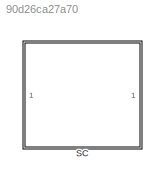
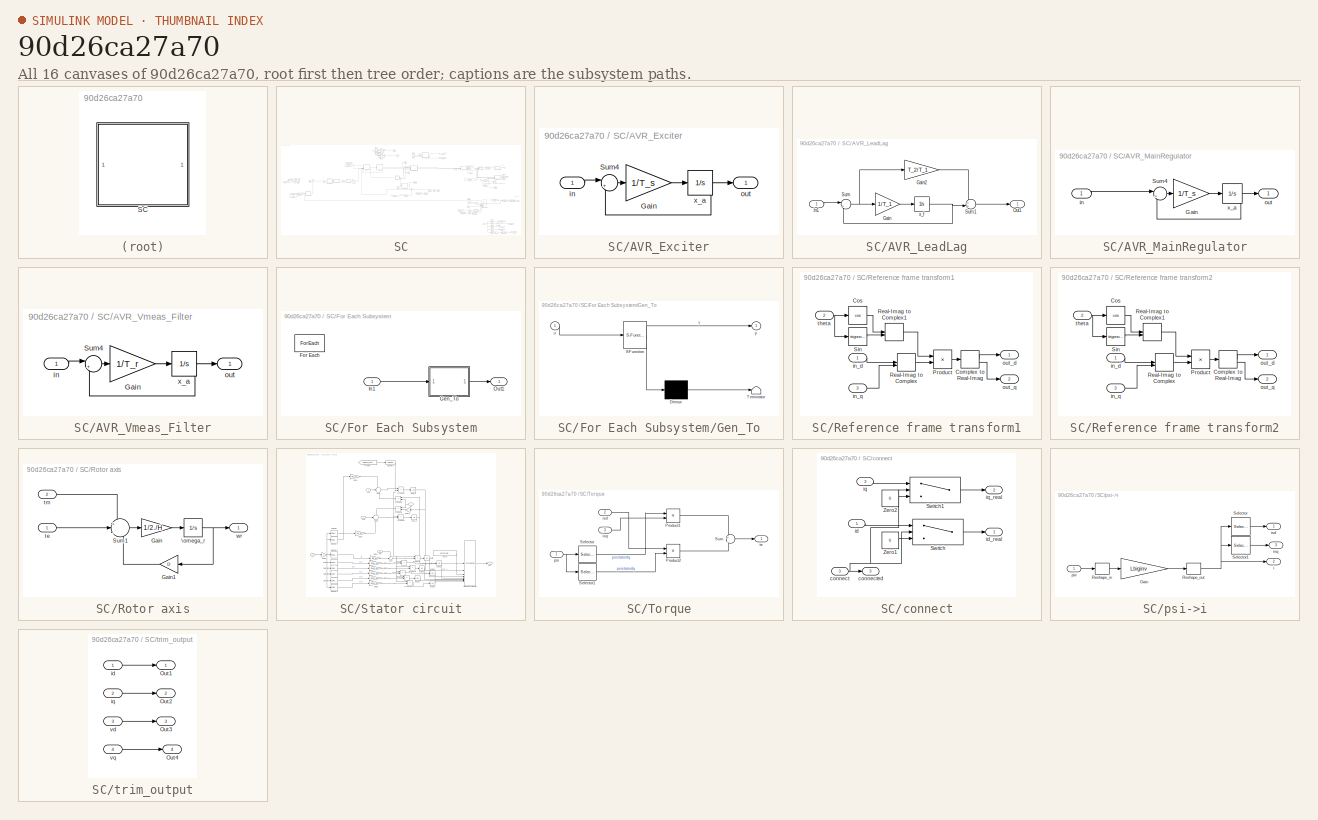
[diagram: thumbnail index - all 16 canvases of the model, root first then tree order]
MODEL slx_90d26ca27a70
KIND model
CONFIG AbsTol = auto
CONFIG EnableMultiTasking = off
CONFIG FixedStep = auto
CONFIG MaxStep = auto
CONFIG MinStep = auto
CONFIG RelTol = 1e-3
CONFIG SampleTimeConstraint = Unconstrained
CONFIG SolverName = VariableStepAuto
CONFIG StartTime = 0.0
CONFIG StopTime = 10.0
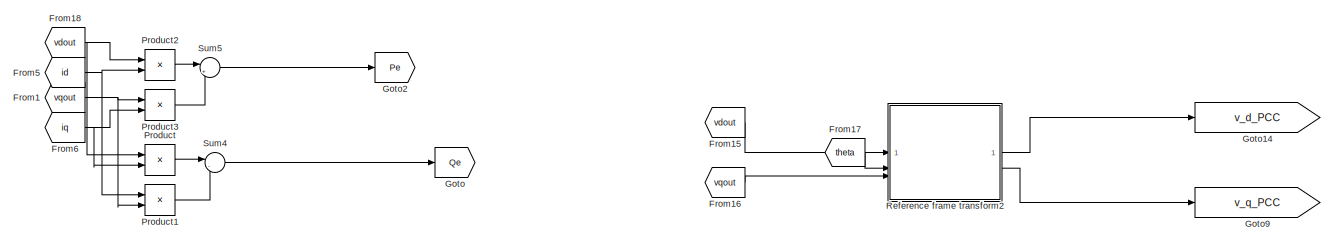
[diagram: SC - part 1/6, top center region]
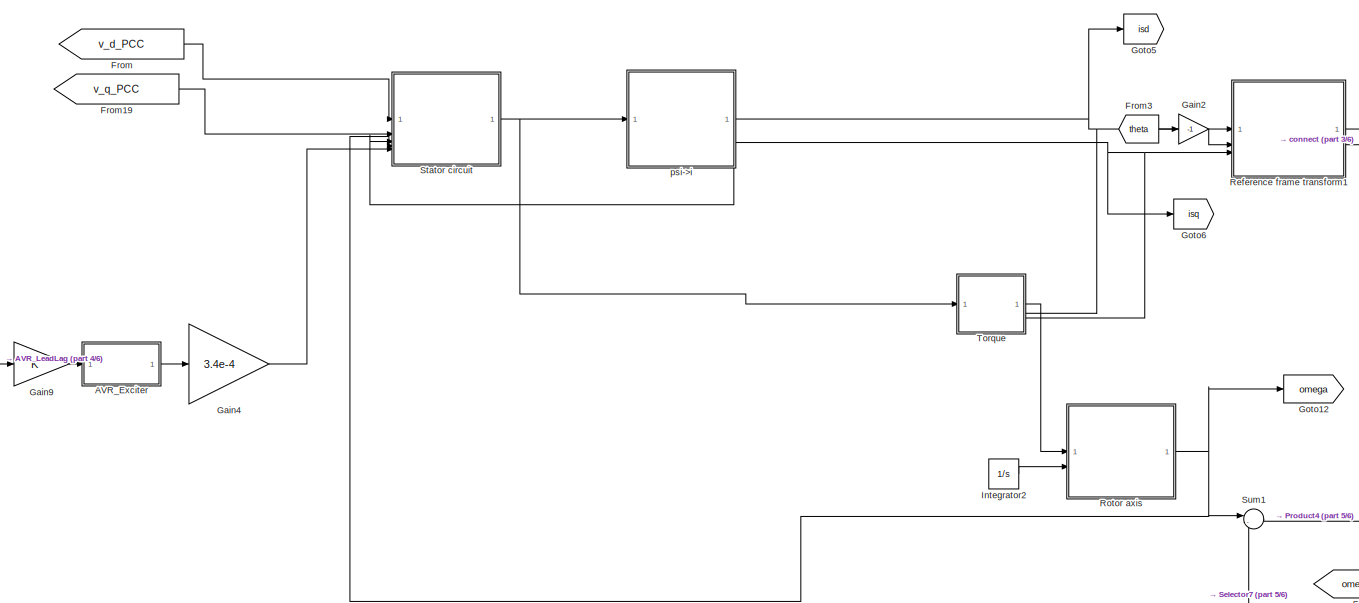
[diagram: SC - part 2/6, central region]
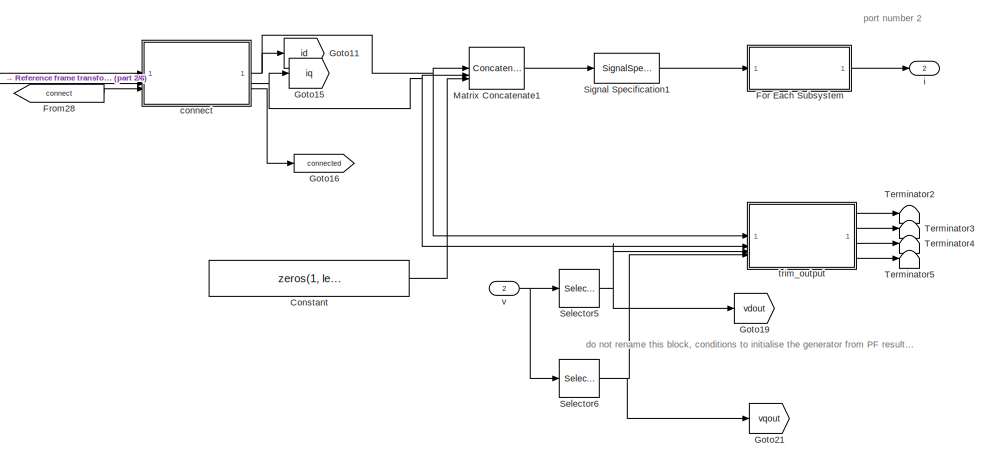
[diagram: SC - part 3/6, middle right region]
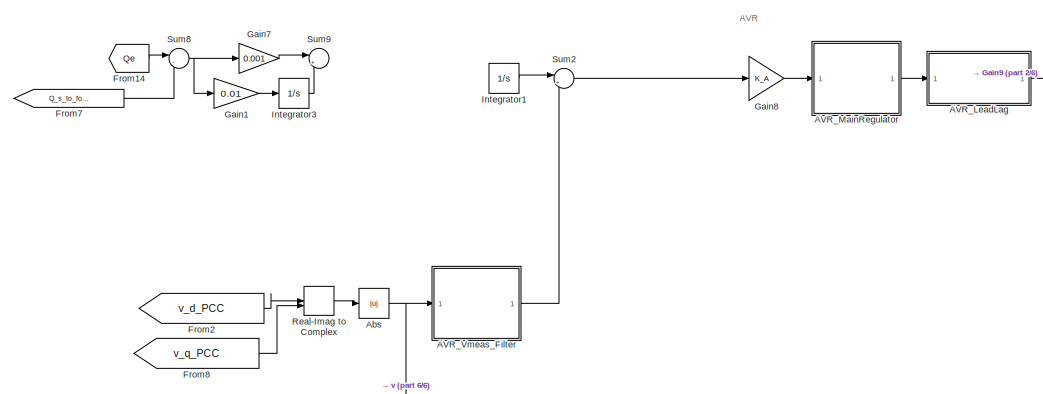
[diagram: SC - part 4/6, middle left region]
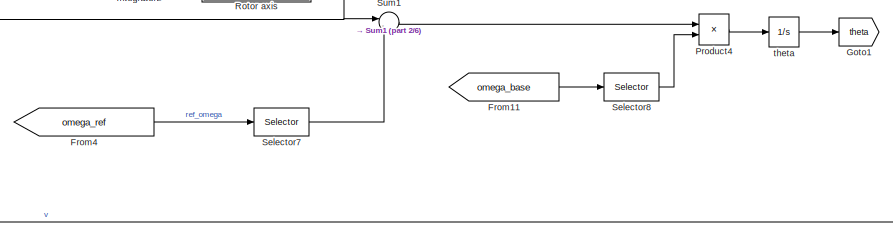
[diagram: SC - part 5/6, central region]
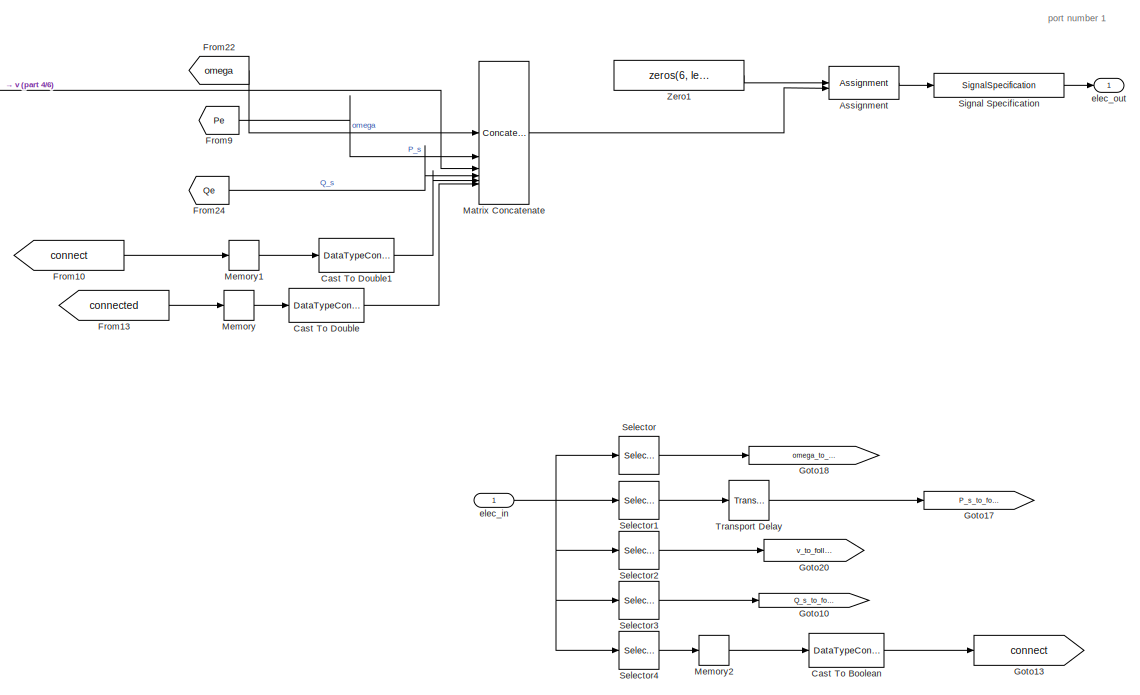
[diagram: SC - part 6/6, bottom right region]
BLOCK [SubSystem] SC
  Commented = on
BLOCK [SubSystem] SC/AVR_Exciter
BLOCK [Gain] SC/AVR_Exciter/Gain
  Gain = 1/T_s
BLOCK [Sum] SC/AVR_Exciter/Sum4
  Inputs = |+-
BLOCK [Inport] SC/AVR_Exciter/in
BLOCK [Outport] SC/AVR_Exciter/out
BLOCK [Integrator] SC/AVR_Exciter/x_a
  InitialCondition = Grid_op_SC.op.States(1).x'
BLOCK [SubSystem] SC/AVR_LeadLag
BLOCK [Gain] SC/AVR_LeadLag/Gain
  Gain = 1/T_1
BLOCK [Gain] SC/AVR_LeadLag/Gain2
  Gain = T_2/T_1
BLOCK [Inport] SC/AVR_LeadLag/In1
BLOCK [Outport] SC/AVR_LeadLag/Out1
BLOCK [Sum] SC/AVR_LeadLag/Sum
  Inputs = |+-
BLOCK [Sum] SC/AVR_LeadLag/Sum1
  Inputs = ++|
BLOCK [Integrator] SC/AVR_LeadLag/x_f
  InitialCondition = Grid_op_SC.op.States(2).x'
BLOCK [SubSystem] SC/AVR_MainRegulator
BLOCK [Gain] SC/AVR_MainRegulator/Gain
  Gain = 1/T_s
BLOCK [Sum] SC/AVR_MainRegulator/Sum4
  Inputs = |+-
BLOCK [Inport] SC/AVR_MainRegulator/in
BLOCK [Outport] SC/AVR_MainRegulator/out
BLOCK [Integrator] SC/AVR_MainRegulator/x_a
  InitialCondition = Grid_op_SC.op.States(3).x'
BLOCK [SubSystem] SC/AVR_Vmeas_Filter
BLOCK [Gain] SC/AVR_Vmeas_Filter/Gain
  Gain = 1/T_r
BLOCK [Sum] SC/AVR_Vmeas_Filter/Sum4
  Inputs = |+-
BLOCK [Inport] SC/AVR_Vmeas_Filter/in
BLOCK [Outport] SC/AVR_Vmeas_Filter/out
BLOCK [Integrator] SC/AVR_Vmeas_Filter/x_a
  InitialCondition = Grid_op_SC.op.States(4).x'
BLOCK [Abs] SC/Abs
  SaturateOnIntegerOverflow = off
BLOCK [Assignment] SC/Assignment
  DiagnosticForDimensions = Warning
  IndexOptions = Assign all,Index vector (dialog)
  Indices = 1,block_idx
  NumberOfDimensions = 2
  OutputSizes = 1,1
BLOCK [DataTypeConversion] SC/Cast To Boolean
  OutDataTypeStr = boolean
  RndMeth = Floor
  SaturateOnIntegerOverflow = off
BLOCK [DataTypeConversion] SC/Cast To Double
  OutDataTypeStr = double
  RndMeth = Floor
  SaturateOnIntegerOverflow = off
BLOCK [DataTypeConversion] SC/Cast To Double1
  OutDataTypeStr = double
  RndMeth = Floor
  SaturateOnIntegerOverflow = off
BLOCK [Constant] SC/Constant
  Value = zeros(1, length(block_buses))
  VectorParams1D = off
BLOCK [SubSystem] SC/For Each Subsystem
  TreatAsAtomicUnit = on
BLOCK [ForEach] SC/For Each Subsystem/For Each
  DisableCoverage = on
BLOCK [SubSystem] SC/For Each Subsystem/Gen_To
  ErrorFcn = Stateflow.Translate.translate
  LibrarySourceBlock = simulink/User-Defined\nFunctions/MATLAB Function
  PermitHierarchicalResolution = ExplicitOnly
  SFBlockType = MATLAB Function
  TreatAsAtomicUnit = on
BLOCK [Demux] SC/For Each Subsystem/Gen_To/ Demux 
  Outputs = 1
BLOCK [S-Function] SC/For Each Subsystem/Gen_To/ SFunction 
  EnableBusSupport = off
  FunctionName = sf_sfun
  Parameters = Nbuses,block_buses
  PortCounts = [1 2]
  SFcnIsStateOwnerBlock = off
  SFunctionDeploymentMode = off
  Tag = Stateflow S-Function 8
BLOCK [Terminator] SC/For Each Subsystem/Gen_To/ Terminator 
BLOCK [Inport] SC/For Each Subsystem/Gen_To/u
BLOCK [Outport] SC/For Each Subsystem/Gen_To/y
BLOCK [Inport] SC/For Each Subsystem/In1
  Partition = on
  PartitionDimension = 1
  PartitionOffset = 0
  PartitionWidth = 1
BLOCK [Outport] SC/For Each Subsystem/Out1
  ConcatenationDimension = 1
BLOCK [From] SC/From
  GotoTag = v_d_PCC
BLOCK [From] SC/From1
  GotoTag = vqout
BLOCK [From] SC/From10
  GotoTag = connect
BLOCK [From] SC/From11
  GotoTag = omega_base
  TagVisibility = scoped
BLOCK [From] SC/From13
  GotoTag = connected
BLOCK [From] SC/From14
  GotoTag = Qe
BLOCK [From] SC/From15
  GotoTag = vdout
BLOCK [From] SC/From16
  GotoTag = vqout
BLOCK [From] SC/From17
  GotoTag = theta
BLOCK [From] SC/From18
  GotoTag = vdout
BLOCK [From] SC/From19
  GotoTag = v_q_PCC
BLOCK [From] SC/From2
  GotoTag = v_d_PCC
BLOCK [From] SC/From22
  GotoTag = omega
BLOCK [From] SC/From24
  GotoTag = Qe
BLOCK [From] SC/From28
  GotoTag = connect
BLOCK [From] SC/From3
  GotoTag = theta
BLOCK [From] SC/From4
  GotoTag = omega_ref
  TagVisibility = scoped
BLOCK [From] SC/From5
  GotoTag = id
BLOCK [From] SC/From6
  GotoTag = iq
BLOCK [From] SC/From7
  GotoTag = Q_s_to_follow_own
BLOCK [From] SC/From8
  GotoTag = v_q_PCC
BLOCK [From] SC/From9
  GotoTag = Pe
BLOCK [Gain] SC/Gain1
  Gain = 0.01
BLOCK [Gain] SC/Gain2
  Gain = -1
BLOCK [Gain] SC/Gain4
  Gain = 3.4e-4
BLOCK [Gain] SC/Gain7
  Gain = 0.001
BLOCK [Gain] SC/Gain8
  Gain = K_A
BLOCK [Gain] SC/Gain9
  NameLocation = top
BLOCK [Goto] SC/Goto
  GotoTag = Qe
BLOCK [Goto] SC/Goto1
  GotoTag = theta
BLOCK [Goto] SC/Goto10
  GotoTag = Q_s_to_follow_own
BLOCK [Goto] SC/Goto11
  GotoTag = id
BLOCK [Goto] SC/Goto12
  GotoTag = omega
BLOCK [Goto] SC/Goto13
  GotoTag = connect
BLOCK [Goto] SC/Goto14
  GotoTag = v_d_PCC
BLOCK [Goto] SC/Goto15
  GotoTag = iq
BLOCK [Goto] SC/Goto16
  GotoTag = connected
BLOCK [Goto] SC/Goto17
  GotoTag = P_s_to_follow_own
BLOCK [Goto] SC/Goto18
  GotoTag = omega_to_follow_own
BLOCK [Goto] SC/Goto19
  GotoTag = vdout
BLOCK [Goto] SC/Goto2
  GotoTag = Pe
BLOCK [Goto] SC/Goto20
  GotoTag = v_to_follow_own
BLOCK [Goto] SC/Goto21
  GotoTag = vqout
BLOCK [Goto] SC/Goto5
  GotoTag = isd
BLOCK [Goto] SC/Goto6
  GotoTag = isq
BLOCK [Goto] SC/Goto9
  GotoTag = v_q_PCC
BLOCK [Integrator] SC/Integrator1
  InitialCondition = Grid_op_SC.op.States(5).x'
BLOCK [Integrator] SC/Integrator2
  InitialCondition = Grid_op_SC.op.States(6).x'
BLOCK [Integrator] SC/Integrator3
  InitialCondition = Grid_op_SC.op.States(7).x'
BLOCK [Concatenate] SC/Matrix Concatenate
  Mode = Multidimensional array
  NumInputs = 6
BLOCK [Concatenate] SC/Matrix Concatenate1
  Mode = Multidimensional array
  NumInputs = 3
BLOCK [Memory] SC/Memory
  InitialCondition = 1
BLOCK [Memory] SC/Memory1
  InitialCondition = 1
BLOCK [Memory] SC/Memory2
  InitialCondition = 1
BLOCK [Product] SC/Product
BLOCK [Product] SC/Product1
BLOCK [Product] SC/Product2
BLOCK [Product] SC/Product3
BLOCK [Product] SC/Product4
BLOCK [RealImagToComplex] SC/Real-Imag to Complex
BLOCK [SubSystem] SC/Reference frame transform1
BLOCK [ComplexToRealImag] SC/Reference frame transform1/Complex to Real-Imag
BLOCK [Trigonometry] SC/Reference frame transform1/Cos
  Operator = cos
  SCDEnableBlockLinearizationSpecification = on
BLOCK [Product] SC/Reference frame transform1/Product
BLOCK [RealImagToComplex] SC/Reference frame transform1/Real-Imag to Complex
BLOCK [RealImagToComplex] SC/Reference frame transform1/Real-Imag to Complex1
BLOCK [Trigonometry] SC/Reference frame transform1/Sin
  SCDEnableBlockLinearizationSpecification = on
BLOCK [Inport] SC/Reference frame transform1/in_d
BLOCK [Inport] SC/Reference frame transform1/in_q
  Port = 3
BLOCK [Outport] SC/Reference frame transform1/out_d
BLOCK [Outport] SC/Reference frame transform1/out_q
  Port = 2
BLOCK [Inport] SC/Reference frame transform1/theta
  Port = 2
BLOCK [SubSystem] SC/Reference frame transform2
BLOCK [ComplexToRealImag] SC/Reference frame transform2/Complex to Real-Imag
BLOCK [Trigonometry] SC/Reference frame transform2/Cos
  Operator = cos
  SCDEnableBlockLinearizationSpecification = on
BLOCK [Product] SC/Reference frame transform2/Product
BLOCK [RealImagToComplex] SC/Reference frame transform2/Real-Imag to Complex
BLOCK [RealImagToComplex] SC/Reference frame transform2/Real-Imag to Complex1
BLOCK [Trigonometry] SC/Reference frame transform2/Sin
  SCDEnableBlockLinearizationSpecification = on
BLOCK [Inport] SC/Reference frame transform2/in_d
BLOCK [Inport] SC/Reference frame transform2/in_q
  Port = 3
BLOCK [Outport] SC/Reference frame transform2/out_d
BLOCK [Outport] SC/Reference frame transform2/out_q
  Port = 2
BLOCK [Inport] SC/Reference frame transform2/theta
  Port = 2
BLOCK [SubSystem] SC/Rotor axis
BLOCK [Gain] SC/Rotor axis/Gain
  Gain = 1/2./H
BLOCK [Gain] SC/Rotor axis/Gain1
  Gain = D
BLOCK [Sum] SC/Rotor axis/Sum1
  InputSameDT = on
  Inputs = +|-|-
  OutDataTypeStr = Inherit: Same as first input
  SaturateOnIntegerOverflow = on
BLOCK [Integrator] SC/Rotor axis/\omega_r
  InitialCondition = Grid_op_SC.op.States(8).x'
  LowerSaturationLimit = 0
  UpperSaturationLimit = 2*pi
BLOCK [Inport] SC/Rotor axis/te
BLOCK [Inport] SC/Rotor axis/tm
  Port = 2
BLOCK [Outport] SC/Rotor axis/wr
  VectorParamsAs1DForOutWhenUnconnected = off
BLOCK [Selector] SC/Selector
  IndexOptions = Index vector (dialog),Index vector (dialog)
  Indices = 1,block_idx
  InputPortWidth = 3
  NumberOfDimensions = 2
  OutputSizes = 1,1
BLOCK [Selector] SC/Selector1
  IndexOptions = Index vector (dialog),Index vector (dialog)
  Indices = 2,block_idx
  InputPortWidth = 3
  NumberOfDimensions = 2
  OutputSizes = 1,1
BLOCK [Selector] SC/Selector2
  IndexOptions = Index vector (dialog),Index vector (dialog)
  Indices = 3,block_idx
  InputPortWidth = 3
  NumberOfDimensions = 2
  OutputSizes = 1,1
BLOCK [Selector] SC/Selector3
  IndexOptions = Index vector (dialog),Index vector (dialog)
  Indices = 4,block_idx
  InputPortWidth = 3
  NumberOfDimensions = 2
  OutputSizes = 1,1
BLOCK [Selector] SC/Selector4
  IndexOptions = Index vector (dialog),Index vector (dialog)
  Indices = 5,block_idx
  InputPortWidth = 3
  NumberOfDimensions = 2
  OutputSizes = 1,1
BLOCK [Selector] SC/Selector5
  IndexOptions = Index vector (dialog),Index vector (dialog)
  Indices = 1,block_buses
  InputPortWidth = 3
  NumberOfDimensions = 2
  OutputSizes = 1,1
BLOCK [Selector] SC/Selector6
  IndexOptions = Index vector (dialog),Index vector (dialog)
  Indices = 2,block_buses
  InputPortWidth = 3
  NumberOfDimensions = 2
  OutputSizes = 1,1
BLOCK [Selector] SC/Selector7
  IndexOptions = Index vector (dialog)
  Indices = block_fref
  InputPortWidth = length(fref.ref_units)
  OutputSizes = 1
BLOCK [Selector] SC/Selector8
  IndexOptions = Index vector (dialog)
  Indices = block_fref
  InputPortWidth = length(fref.ref_units)
  OutputSizes = 1
BLOCK [SignalSpecification] SC/Signal Specification
  Dimensions = [6 length(buses_lf)]
BLOCK [SignalSpecification] SC/Signal Specification1
  Dimensions = [3 length(block_buses)]
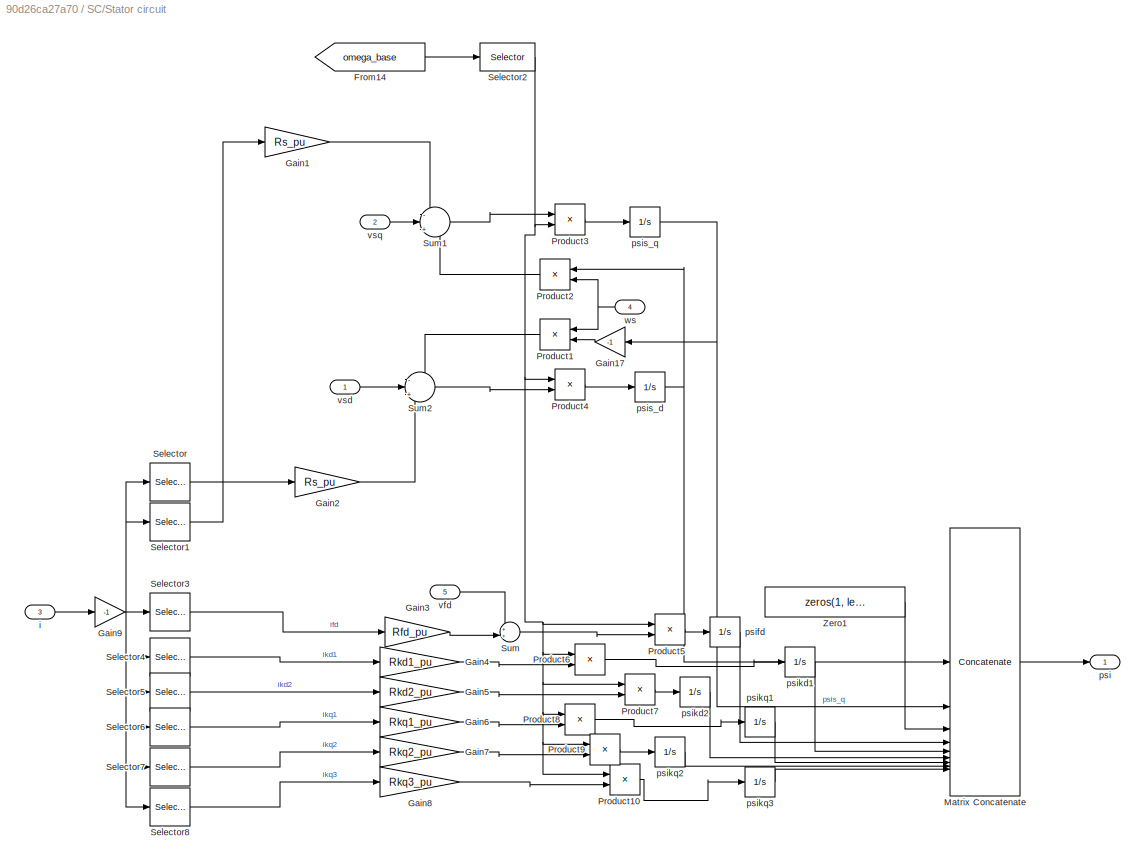
BLOCK [SubSystem] SC/Stator circuit
BLOCK [From] SC/Stator circuit/From14
  GotoTag = omega_base
  TagVisibility = scoped
BLOCK [Gain] SC/Stator circuit/Gain1
  Gain = Rs_pu
BLOCK [Gain] SC/Stator circuit/Gain17
  Gain = -1
  NameLocation = top
BLOCK [Gain] SC/Stator circuit/Gain2
  Gain = Rs_pu
BLOCK [Gain] SC/Stator circuit/Gain3
  Gain = Rfd_pu
BLOCK [Gain] SC/Stator circuit/Gain4
  Gain = Rkd1_pu
BLOCK [Gain] SC/Stator circuit/Gain5
  Gain = Rkd2_pu
BLOCK [Gain] SC/Stator circuit/Gain6
  Gain = Rkq1_pu
BLOCK [Gain] SC/Stator circuit/Gain7
  Gain = Rkq2_pu
BLOCK [Gain] SC/Stator circuit/Gain8
  Gain = Rkq3_pu
BLOCK [Gain] SC/Stator circuit/Gain9
  Gain = -1
BLOCK [Concatenate] SC/Stator circuit/Matrix Concatenate
  Mode = Multidimensional array
  NumInputs = 9
BLOCK [Product] SC/Stator circuit/Product1
BLOCK [Product] SC/Stator circuit/Product10
BLOCK [Product] SC/Stator circuit/Product2
BLOCK [Product] SC/Stator circuit/Product3
BLOCK [Product] SC/Stator circuit/Product4
BLOCK [Product] SC/Stator circuit/Product5
BLOCK [Product] SC/Stator circuit/Product6
BLOCK [Product] SC/Stator circuit/Product7
BLOCK [Product] SC/Stator circuit/Product8
BLOCK [Product] SC/Stator circuit/Product9
BLOCK [Selector] SC/Stator circuit/Selector
  IndexOptions = Index vector (dialog),Select all
  Indices = [1],1
  InputPortWidth = 9
  NumberOfDimensions = 2
  OutputSizes = 1,1
BLOCK [Selector] SC/Stator circuit/Selector1
  IndexOptions = Index vector (dialog),Select all
  Indices = [2],1
  InputPortWidth = 9
  NumberOfDimensions = 2
  OutputSizes = 1,1
BLOCK [Selector] SC/Stator circuit/Selector2
  IndexOptions = Index vector (dialog)
  Indices = block_fref
  InputPortWidth = length(fref.ref_units)
  OutputSizes = 1
BLOCK [Selector] SC/Stator circuit/Selector3
  IndexOptions = Index vector (dialog),Select all
  Indices = [4],1
  InputPortWidth = 9
  NumberOfDimensions = 2
  OutputSizes = 1,1
BLOCK [Selector] SC/Stator circuit/Selector4
  IndexOptions = Index vector (dialog),Select all
  Indices = [5],1
  InputPortWidth = 9
  NumberOfDimensions = 2
  OutputSizes = 1,1
BLOCK [Selector] SC/Stator circuit/Selector5
  IndexOptions = Index vector (dialog),Select all
  Indices = [6],1
  InputPortWidth = 9
  NumberOfDimensions = 2
  OutputSizes = 1,1
BLOCK [Selector] SC/Stator circuit/Selector6
  IndexOptions = Index vector (dialog),Select all
  Indices = [7],1
  InputPortWidth = 9
  NumberOfDimensions = 2
  OutputSizes = 1,1
BLOCK [Selector] SC/Stator circuit/Selector7
  IndexOptions = Index vector (dialog),Select all
  Indices = [8],1
  InputPortWidth = 9
  NumberOfDimensions = 2
  OutputSizes = 1,1
BLOCK [Selector] SC/Stator circuit/Selector8
  IndexOptions = Index vector (dialog),Select all
  Indices = [9],1
  InputPortWidth = 9
  NumberOfDimensions = 2
  OutputSizes = 1,1
BLOCK [Sum] SC/Stator circuit/Sum
  Inputs = ++|
BLOCK [Sum] SC/Stator circuit/Sum1
  InputSameDT = on
  Inputs = -|+|-
  OutDataTypeStr = Inherit: Same as first input
  SaturateOnIntegerOverflow = on
BLOCK [Sum] SC/Stator circuit/Sum2
  InputSameDT = on
  Inputs = -|+|-
  OutDataTypeStr = Inherit: Same as first input
  SaturateOnIntegerOverflow = on
BLOCK [Constant] SC/Stator circuit/Zero1
  OutDataTypeStr = Inherit: Inherit via back propagation
  Value = zeros(1, length(block_buses))
  VectorParams1D = off
BLOCK [Inport] SC/Stator circuit/i
  Port = 3
BLOCK [Outport] SC/Stator circuit/psi
  VectorParamsAs1DForOutWhenUnconnected = off
BLOCK [Integrator] SC/Stator circuit/psifd
  InitialCondition = Grid_op_SC.op.States(9).x'
BLOCK [Integrator] SC/Stator circuit/psikd1
  InitialCondition = Grid_op_SC.op.States(10).x'
BLOCK [Integrator] SC/Stator circuit/psikd2
  InitialCondition = Grid_op_SC.op.States(11).x'
BLOCK [Integrator] SC/Stator circuit/psikq1
  InitialCondition = Grid_op_SC.op.States(12).x'
BLOCK [Integrator] SC/Stator circuit/psikq2
  InitialCondition = Grid_op_SC.op.States(13).x'
BLOCK [Integrator] SC/Stator circuit/psikq3
  InitialCondition = Grid_op_SC.op.States(14).x'
BLOCK [Integrator] SC/Stator circuit/psis_d
  InitialCondition = Grid_op_SC.op.States(15).x'
BLOCK [Integrator] SC/Stator circuit/psis_q
  InitialCondition = Grid_op_SC.op.States(16).x'
BLOCK [Inport] SC/Stator circuit/vfd
  Port = 5
BLOCK [Inport] SC/Stator circuit/vsd
BLOCK [Inport] SC/Stator circuit/vsq
  Port = 2
BLOCK [Inport] SC/Stator circuit/ws
  Port = 4
BLOCK [Sum] SC/Sum1
  Inputs = |-+
BLOCK [Sum] SC/Sum2
  Inputs = |+-
BLOCK [Sum] SC/Sum4
  Inputs = |-+
BLOCK [Sum] SC/Sum5
  Inputs = |++
BLOCK [Sum] SC/Sum8
  Inputs = |-+
BLOCK [Sum] SC/Sum9
  Inputs = |++
BLOCK [Terminator] SC/Terminator2
BLOCK [Terminator] SC/Terminator3
BLOCK [Terminator] SC/Terminator4
BLOCK [Terminator] SC/Terminator5
BLOCK [SubSystem] SC/Torque
  PortSchema = {"entries":[{"content":{"sides":[{"content":{"connectorIds":["In1"]},"type":"ConnectorPlacement.EquallySpacedRectSide","uuid":"b7abd3bc-22dd-4669-aa40-98bc76884565"},{"content":{"connectorIds":["In2","In3","Out1"],"side":"RIGHT"},"type":"ConnectorPlacement.EquallySpacedRectSide","uuid":"e9abb552-b46d-48ed-aa1f-0e9dac604fea"},{"content":{"connectorIds":[],"side":"TOP"},"type":"ConnectorPlacement.Eq...<+252ch>
BLOCK [Product] SC/Torque/Product1
BLOCK [Product] SC/Torque/Product2
BLOCK [Selector] SC/Torque/Selector
  IndexOptions = Index vector (dialog),Select all
  Indices = [1],1
  InputPortWidth = 9
  NumberOfDimensions = 2
  OutputSizes = 1,1
BLOCK [Selector] SC/Torque/Selector1
  IndexOptions = Index vector (dialog),Select all
  Indices = [2],1
  InputPortWidth = 9
  NumberOfDimensions = 2
  OutputSizes = 1,1
BLOCK [Sum] SC/Torque/Sum
  Inputs = +||-
BLOCK [Inport] SC/Torque/isd
  Port = 2
BLOCK [Inport] SC/Torque/isq
  Port = 3
BLOCK [Inport] SC/Torque/psi
BLOCK [Outport] SC/Torque/te
  VectorParamsAs1DForOutWhenUnconnected = off
BLOCK [TransportDelay] SC/Transport Delay
  DelayTime = 0.0001
  TransDelayFeedthrough = on
BLOCK [Constant] SC/Zero1
  OutDataTypeStr = Inherit: Inherit via back propagation
  Value = zeros(6, length(buses_lf))
  VectorParams1D = off
BLOCK [SubSystem] SC/connect
BLOCK [Switch] SC/connect/Switch
  Criteria = u2 > Threshold
  InputSameDT = off
  SaturateOnIntegerOverflow = off
  ZeroCross = off
BLOCK [Switch] SC/connect/Switch1
  Criteria = u2 > Threshold
  InputSameDT = off
  SaturateOnIntegerOverflow = off
  ZeroCross = off
BLOCK [Constant] SC/connect/Zero1
  OutDataTypeStr = Inherit: Inherit via back propagation
  Value = 0
  VectorParams1D = off
BLOCK [Constant] SC/connect/Zero2
  OutDataTypeStr = Inherit: Inherit via back propagation
  Value = 0
  VectorParams1D = off
BLOCK [Inport] SC/connect/connect
  Port = 3
BLOCK [Outport] SC/connect/connected
  OutDataTypeStr = boolean
  Port = 3
BLOCK [Inport] SC/connect/id
BLOCK [Outport] SC/connect/id_real
BLOCK [Inport] SC/connect/iq
  Port = 2
BLOCK [Outport] SC/connect/iq_real
  Port = 2
BLOCK [Inport] SC/elec_in
BLOCK [Outport] SC/elec_out
BLOCK [Outport] SC/i
  Port = 2
BLOCK [SubSystem] SC/psi->i
BLOCK [Gain] SC/psi->i/Gain
  Gain = Lbiginv
  Multiplication = Matrix(K*u)
BLOCK [Reshape] SC/psi->i/Reshape_in
  OutputDimensionality = Column vector (2-D)
BLOCK [Reshape] SC/psi->i/Reshape_out
  OutputDimensionality = Customize
  OutputDimensions = [9, length(SCs_buses)]
BLOCK [Selector] SC/psi->i/Selector
  IndexOptions = Index vector (dialog),Select all
  Indices = [1],1
  InputPortWidth = 9
  NumberOfDimensions = 2
  OutputSizes = 1,1
BLOCK [Selector] SC/psi->i/Selector1
  IndexOptions = Index vector (dialog),Select all
  Indices = [2],1
  InputPortWidth = 9
  NumberOfDimensions = 2
  OutputSizes = 1,1
BLOCK [Outport] SC/psi->i/i
  Port = 2
  VectorParamsAs1DForOutWhenUnconnected = off
BLOCK [Outport] SC/psi->i/isd
  VectorParamsAs1DForOutWhenUnconnected = off
BLOCK [Outport] SC/psi->i/isq
  Port = 3
  VectorParamsAs1DForOutWhenUnconnected = off
BLOCK [Inport] SC/psi->i/psi
BLOCK [Integrator] SC/theta
  InitialCondition = Grid_op_SC.op.States(17).x'
  LowerSaturationLimit = 0
  UpperSaturationLimit = 2*pi
BLOCK [SubSystem] SC/trim_output
BLOCK [Outport] SC/trim_output/Out1
BLOCK [Outport] SC/trim_output/Out2
  Port = 2
BLOCK [Outport] SC/trim_output/Out3
  Port = 3
BLOCK [Outport] SC/trim_output/Out4
  Port = 4
BLOCK [Inport] SC/trim_output/id
BLOCK [Inport] SC/trim_output/iq
  Port = 2
BLOCK [Inport] SC/trim_output/vd
  Port = 3
BLOCK [Inport] SC/trim_output/vq
  Port = 4
BLOCK [Inport] SC/v
  Port = 2
ANNOTATION SC: AVR
ANNOTATION SC: do not rename this block, conditions to initialise the generator from PF result are set on this block's output
ANNOTATION SC: port number 1
ANNOTATION SC: port number 2
CHART SC/For Each
Subsystem/Gen_To states=1 transitions=1
  STATE_LABEL 'eML_blk_kernel()'
  STATE_LABEL 'SCRIPT:\nfunction y = fcn(u, Nbuses, block_buses)\n\ny = zeros(1, Nbuses);\nfor i=1:Nbuses\n    y(i) = sum(u(block_buses == i));\nend\n'
CHART  states=0 transitions=0
